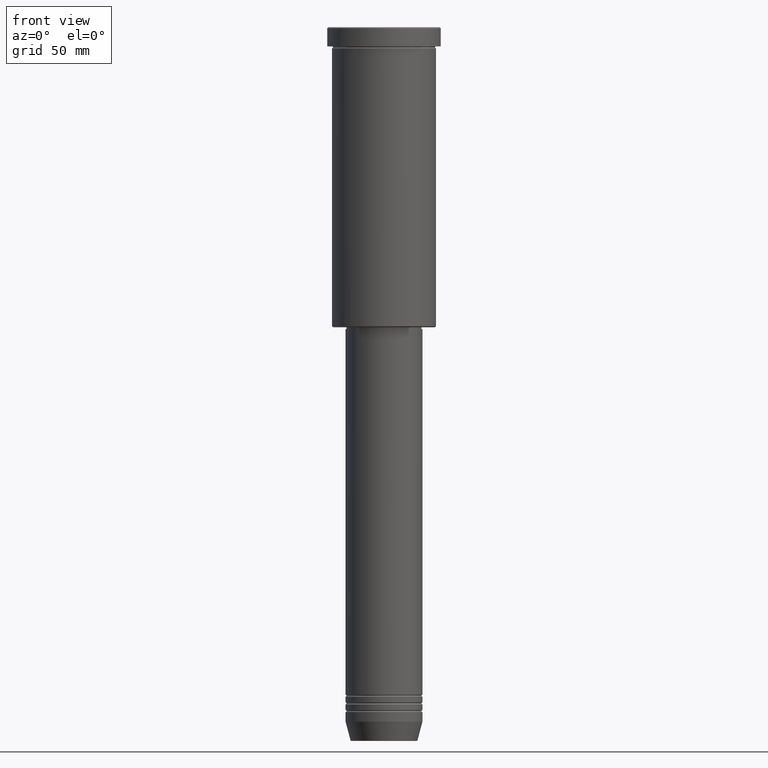
[diagram: clean part render]
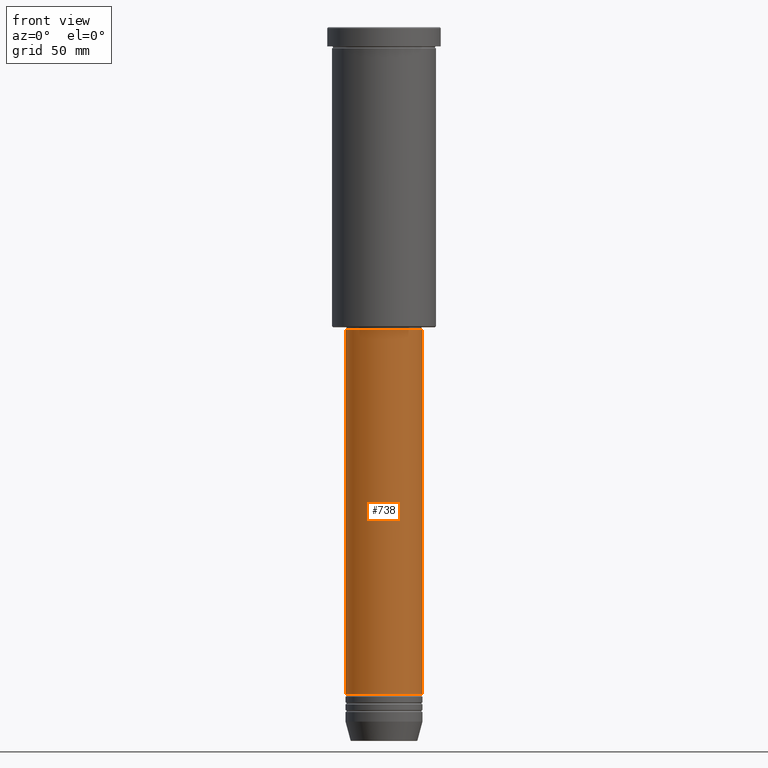
[diagram: same view with one face highlighted and labeled with its STEP entity id]
A machine part, front view. The second image highlights one B-rep face of the part: STEP entity #738.
In plain terms, the highlighted cylindrical surface (partial cylindrical patch) has radius 20 mm, axis along (-0, -0, 1).
Its self-contained STEP definition (entity closure, byte-faithful):
#48 = DIRECTION ( 'NONE',  ( -0.000000000000000000, -0.000000000000000000, 1.000000000000000000 ) ) ;
#61 = LINE ( 'NONE', #509, #528 ) ;
#87 = LINE ( 'NONE', #814, #531 ) ;
#116 = DIRECTION ( 'NONE',  ( 1.000000000000000000, 0.000000000000000000, 0.000000000000000000 ) ) ;
#155 = DIRECTION ( 'NONE',  ( -0.000000000000000000, -0.000000000000000000, 1.000000000000000000 ) ) ;
#213 = CARTESIAN_POINT ( 'NONE',  ( 20.00000000000000000, 0.000000000000000000, -346.9999999999998863 ) ) ;
#253 = AXIS2_PLACEMENT_3D ( 'NONE', #962, #155, #872 ) ;
#256 = VERTEX_POINT ( 'NONE', #330 ) ;
#289 = EDGE_CURVE ( 'NONE', #256, #923, #61, .T. ) ;
#330 = CARTESIAN_POINT ( 'NONE',  ( -20.00000000000000000, 2.449293598294706513E-15, -346.9999999999998863 ) ) ;
#339 = CYLINDRICAL_SURFACE ( 'NONE', #253, 19.99999999999999645 ) ;
#342 = EDGE_CURVE ( 'NONE', #256, #908, #899, .T. ) ;
#372 = DIRECTION ( 'NONE',  ( -0.000000000000000000, -0.000000000000000000, 1.000000000000000000 ) ) ;
#444 = FACE_OUTER_BOUND ( 'NONE', #1055, .T. ) ;
#483 = ORIENTED_EDGE ( 'NONE', *, *, #289, .F. ) ;
#509 = CARTESIAN_POINT ( 'NONE',  ( -19.99999999999999645, 2.449293598294706119E-15, 0.000000000000000000 ) ) ;
#525 = ORIENTED_EDGE ( 'NONE', *, *, #342, .T. ) ;
#528 = VECTOR ( 'NONE', #980, 1000.000000000000000 ) ;
#531 = VECTOR ( 'NONE', #372, 1000.000000000000000 ) ;
#701 = EDGE_CURVE ( 'NONE', #923, #916, #804, .T. ) ;
#738 = ADVANCED_FACE ( 'NONE', ( #444 ), #339, .T. ) ;
#804 = CIRCLE ( 'NONE', #882, 19.99999999999999645 ) ;
#814 = CARTESIAN_POINT ( 'NONE',  ( 19.99999999999999645, 0.000000000000000000, 0.000000000000000000 ) ) ;
#872 = DIRECTION ( 'NONE',  ( 1.000000000000000000, 0.000000000000000000, 0.000000000000000000 ) ) ;
#875 = ORIENTED_EDGE ( 'NONE', *, *, #1040, .T. ) ;
#882 = AXIS2_PLACEMENT_3D ( 'NONE', #979, #1150, #956 ) ;
#899 = CIRCLE ( 'NONE', #1096, 20.00000000000000000 ) ;
#908 = VERTEX_POINT ( 'NONE', #213 ) ;
#916 = VERTEX_POINT ( 'NONE', #1154 ) ;
#923 = VERTEX_POINT ( 'NONE', #960 ) ;
#940 = CARTESIAN_POINT ( 'NONE',  ( 0.000000000000000000, 0.000000000000000000, -346.9999999999998863 ) ) ;
#956 = DIRECTION ( 'NONE',  ( 1.000000000000000000, 0.000000000000000000, 0.000000000000000000 ) ) ;
#960 = CARTESIAN_POINT ( 'NONE',  ( -19.99999999999999645, 2.449293598294706119E-15, -156.9999999999999147 ) ) ;
#962 = CARTESIAN_POINT ( 'NONE',  ( 0.000000000000000000, 0.000000000000000000, 0.000000000000000000 ) ) ;
#979 = CARTESIAN_POINT ( 'NONE',  ( 0.000000000000000000, 0.000000000000000000, -156.9999999999999147 ) ) ;
#980 = DIRECTION ( 'NONE',  ( -0.000000000000000000, -0.000000000000000000, 1.000000000000000000 ) ) ;
#1040 = EDGE_CURVE ( 'NONE', #908, #916, #87, .T. ) ;
#1055 = EDGE_LOOP ( 'NONE', ( #483, #525, #875, #1168 ) ) ;
#1096 = AXIS2_PLACEMENT_3D ( 'NONE', #940, #48, #116 ) ;
#1150 = DIRECTION ( 'NONE',  ( -0.000000000000000000, -0.000000000000000000, 1.000000000000000000 ) ) ;
#1154 = CARTESIAN_POINT ( 'NONE',  ( 19.99999999999999645, 0.000000000000000000, -156.9999999999999147 ) ) ;
#1168 = ORIENTED_EDGE ( 'NONE', *, *, #701, .F. ) ;